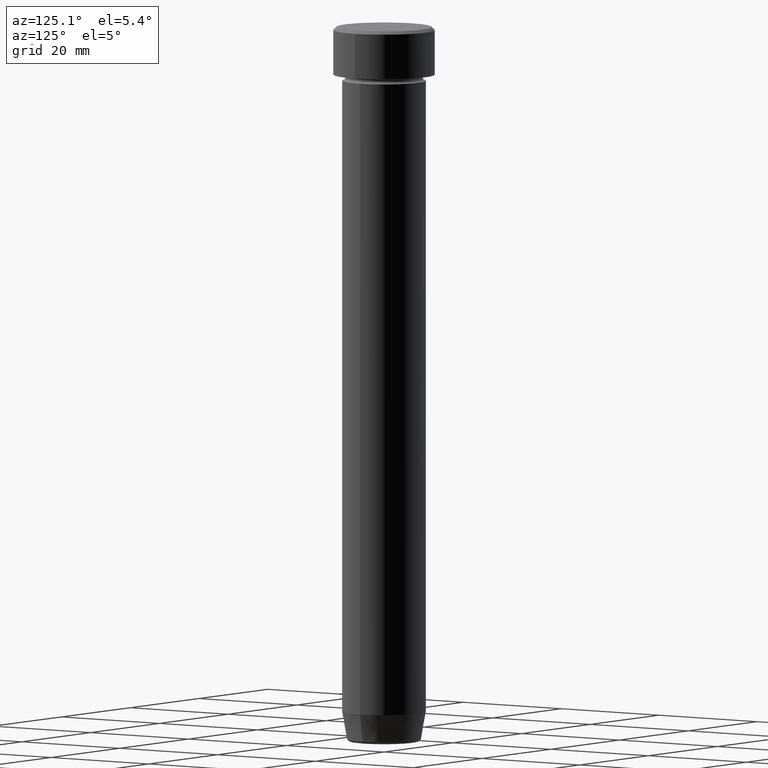
[diagram: clean part render]
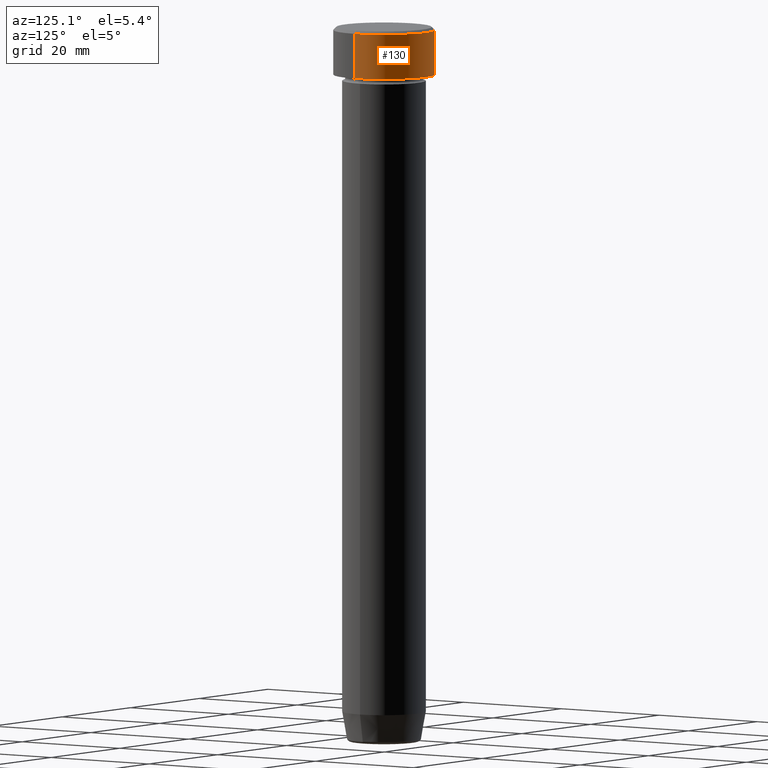
[diagram: same view with one face highlighted and labeled with its STEP entity id]
A machine part, auxiliary view. The second image highlights one B-rep face of the part: STEP entity #130.
In plain terms, the highlighted cylindrical surface (partial cylindrical patch) has radius 8.5 mm, axis along (-0, -0, 1).
Its self-contained STEP definition (entity closure, byte-faithful):
#11 = DIRECTION ( 'NONE',  ( -0.000000000000000000, -0.000000000000000000, 1.000000000000000000 ) ) ;
#17 = LINE ( 'NONE', #379, #99 ) ;
#42 = CIRCLE ( 'NONE', #91, 8.500000000000000000 ) ;
#47 = EDGE_LOOP ( 'NONE', ( #122, #279, #461, #176 ) ) ;
#60 = DIRECTION ( 'NONE',  ( -0.000000000000000000, -0.000000000000000000, 1.000000000000000000 ) ) ;
#91 = AXIS2_PLACEMENT_3D ( 'NONE', #363, #510, #407 ) ;
#99 = VECTOR ( 'NONE', #516, 1000.000000000000000 ) ;
#104 = EDGE_CURVE ( 'NONE', #268, #371, #17, .T. ) ;
#117 = CYLINDRICAL_SURFACE ( 'NONE', #557, 8.500000000000000000 ) ;
#122 = ORIENTED_EDGE ( 'NONE', *, *, #492, .T. ) ;
#130 = ADVANCED_FACE ( 'NONE', ( #533 ), #117, .T. ) ;
#154 = CIRCLE ( 'NONE', #482, 8.500000000000000000 ) ;
#158 = CARTESIAN_POINT ( 'NONE',  ( 0.000000000000000000, 0.000000000000000000, 0.000000000000000000 ) ) ;
#176 = ORIENTED_EDGE ( 'NONE', *, *, #452, .F. ) ;
#188 = DIRECTION ( 'NONE',  ( 1.000000000000000000, 0.000000000000000000, 0.000000000000000000 ) ) ;
#200 = CARTESIAN_POINT ( 'NONE',  ( 8.500000000000000000, 0.000000000000000000, 0.000000000000000000 ) ) ;
#211 = VERTEX_POINT ( 'NONE', #392 ) ;
#225 = VECTOR ( 'NONE', #60, 1000.000000000000000 ) ;
#268 = VERTEX_POINT ( 'NONE', #515 ) ;
#279 = ORIENTED_EDGE ( 'NONE', *, *, #104, .T. ) ;
#296 = DIRECTION ( 'NONE',  ( 1.000000000000000000, 0.000000000000000000, 0.000000000000000000 ) ) ;
#298 = CARTESIAN_POINT ( 'NONE',  ( 8.500000000000000000, 0.000000000000000000, -0.4999999999999987232 ) ) ;
#355 = VERTEX_POINT ( 'NONE', #298 ) ;
#363 = CARTESIAN_POINT ( 'NONE',  ( 0.000000000000000000, 0.000000000000000000, -0.4999999999999987232 ) ) ;
#371 = VERTEX_POINT ( 'NONE', #563 ) ;
#379 = CARTESIAN_POINT ( 'NONE',  ( -8.500000000000000000, 1.040949779275250140E-15, 0.000000000000000000 ) ) ;
#392 = CARTESIAN_POINT ( 'NONE',  ( 8.500000000000000000, 0.000000000000000000, -8.000000000000000000 ) ) ;
#395 = DIRECTION ( 'NONE',  ( -0.000000000000000000, -0.000000000000000000, 1.000000000000000000 ) ) ;
#407 = DIRECTION ( 'NONE',  ( 1.000000000000000000, 0.000000000000000000, 0.000000000000000000 ) ) ;
#424 = CARTESIAN_POINT ( 'NONE',  ( 0.000000000000000000, 0.000000000000000000, -8.000000000000000000 ) ) ;
#452 = EDGE_CURVE ( 'NONE', #211, #355, #478, .T. ) ;
#461 = ORIENTED_EDGE ( 'NONE', *, *, #536, .T. ) ;
#478 = LINE ( 'NONE', #200, #225 ) ;
#482 = AXIS2_PLACEMENT_3D ( 'NONE', #424, #11, #188 ) ;
#492 = EDGE_CURVE ( 'NONE', #211, #268, #154, .T. ) ;
#510 = DIRECTION ( 'NONE',  ( 0.000000000000000000, 0.000000000000000000, -1.000000000000000000 ) ) ;
#515 = CARTESIAN_POINT ( 'NONE',  ( -8.500000000000000000, 1.040949779275250140E-15, -8.000000000000000000 ) ) ;
#516 = DIRECTION ( 'NONE',  ( -0.000000000000000000, -0.000000000000000000, 1.000000000000000000 ) ) ;
#533 = FACE_OUTER_BOUND ( 'NONE', #47, .T. ) ;
#536 = EDGE_CURVE ( 'NONE', #371, #355, #42, .T. ) ;
#557 = AXIS2_PLACEMENT_3D ( 'NONE', #158, #395, #296 ) ;
#563 = CARTESIAN_POINT ( 'NONE',  ( -8.500000000000000000, 1.040949779275250140E-15, -0.4999999999999987232 ) ) ;